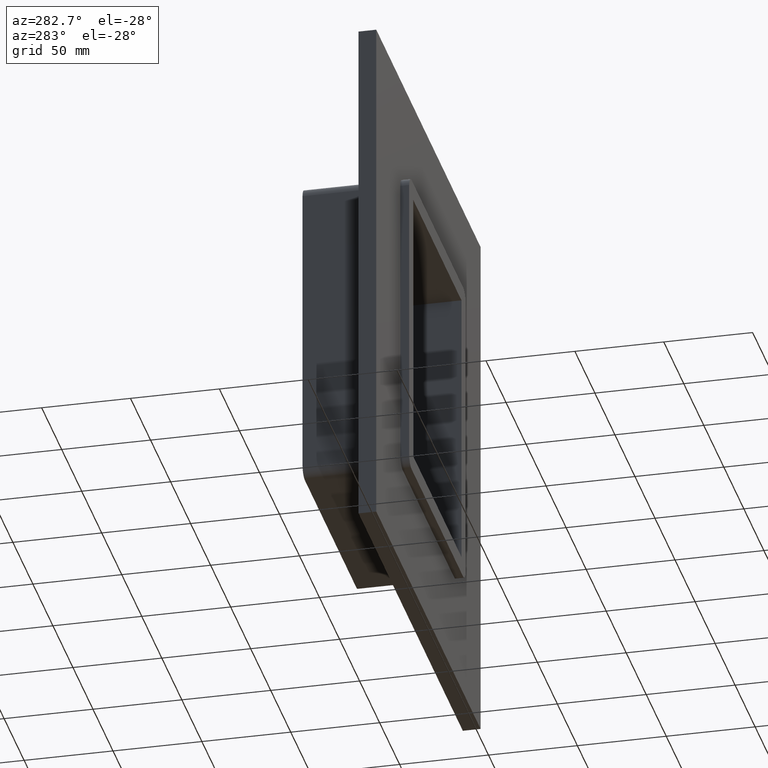
[diagram: clean part render]
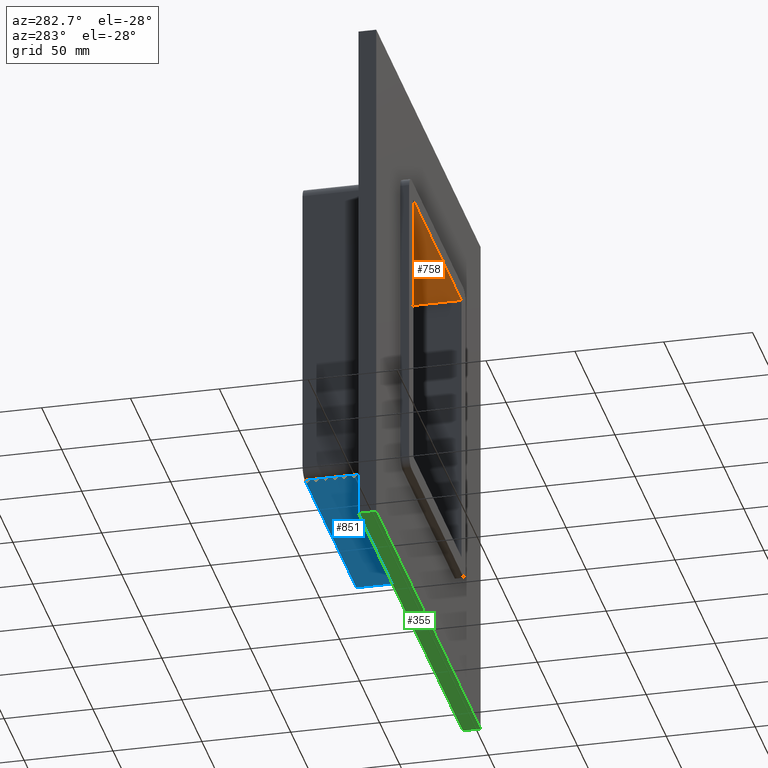
[diagram: same view with three faces highlighted in distinct colors, each labeled with its STEP entity id]
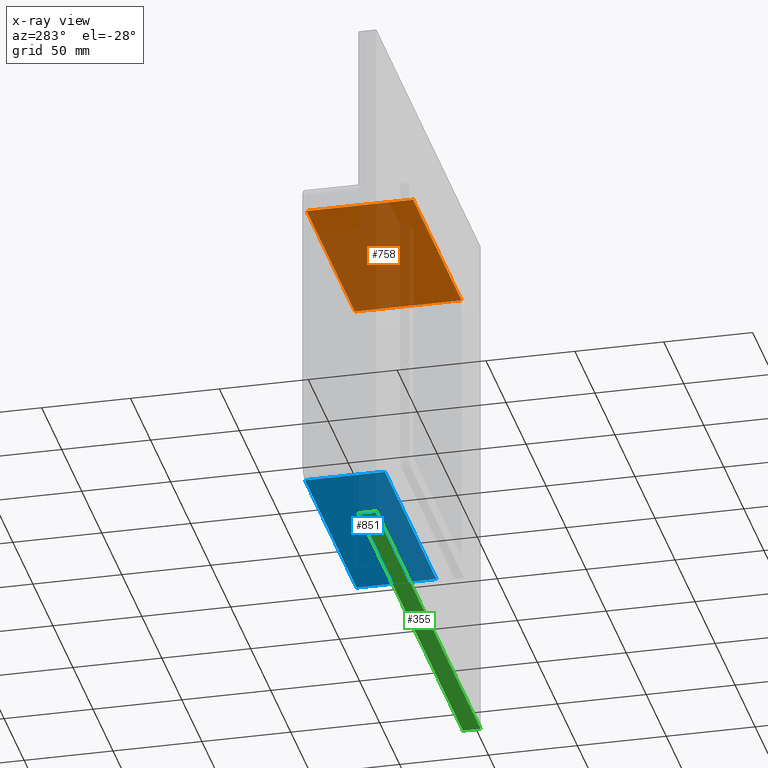
[diagram: x-ray of the same camera — body ghosted, the three highlighted faces saturated]
A machine part, auxiliary view with three faces highlighted in distinct colors.
The next image is the same camera in x-ray (body ghosted, the three faces saturated) — at least one of them is partly hidden behind the body in this view.
Their STEP definitions:

[orange] entity #758 — the highlighted planar face has unit normal (0, 0, 1).
#361=CARTESIAN_POINT('',(-60.25,-5.0,79.750000000000014));
#362=VERTEX_POINT('',#361);
#363=CARTESIAN_POINT('',(-60.25,55.0,79.750000000000014));
#364=VERTEX_POINT('',#363);
#365=CARTESIAN_POINT('',(-60.25,-5.0,79.750000000000014));
#366=DIRECTION('',(0.0,1.0,0.0));
#367=VECTOR('',#366,60.0);
#368=LINE('',#365,#367);
#369=EDGE_CURVE('',#362,#364,#368,.T.);
#702=CARTESIAN_POINT('',(60.25,-5.0,79.750000000000014));
#703=VERTEX_POINT('',#702);
#704=CARTESIAN_POINT('',(60.25,55.0,79.750000000000014));
#705=VERTEX_POINT('',#704);
#706=CARTESIAN_POINT('',(60.25,-5.0,79.750000000000014));
#707=DIRECTION('',(0.0,1.0,0.0));
#708=VECTOR('',#707,60.0);
#709=LINE('',#706,#708);
#710=EDGE_CURVE('',#703,#705,#709,.T.);
#737=CARTESIAN_POINT('',(-60.25,0.0,79.750000000000014));
#738=DIRECTION('',(0.0,0.0,1.0));
#739=DIRECTION('',(1.0,0.0,0.0));
#740=AXIS2_PLACEMENT_3D('',#737,#738,#739);
#741=PLANE('',#740);
#742=ORIENTED_EDGE('',*,*,#369,.T.);
#743=CARTESIAN_POINT('',(60.250000000000014,55.0,79.750000000000014));
#744=DIRECTION('',(-1.0,0.0,0.0));
#745=VECTOR('',#744,120.50000000000001);
#746=LINE('',#743,#745);
#747=EDGE_CURVE('',#705,#364,#746,.T.);
#748=ORIENTED_EDGE('',*,*,#747,.F.);
#749=ORIENTED_EDGE('',*,*,#710,.F.);
#750=CARTESIAN_POINT('',(-60.25,-5.0,79.750000000000014));
#751=DIRECTION('',(1.0,0.0,0.0));
#752=VECTOR('',#751,120.50000000000001);
#753=LINE('',#750,#752);
#754=EDGE_CURVE('',#362,#703,#753,.T.);
#755=ORIENTED_EDGE('',*,*,#754,.F.);
#756=EDGE_LOOP('',(#742,#748,#749,#755));
#757=FACE_OUTER_BOUND('',#756,.T.);
#758=ADVANCED_FACE('',(#757),#741,.F.);

[blue] entity #851 — the highlighted planar face has unit normal (0, 0, -1).
#143=CARTESIAN_POINT('',(-64.25,10.0,-89.750000000000014));
#144=VERTEX_POINT('',#143);
#152=CARTESIAN_POINT('',(64.25,10.0,-89.750000000000014));
#153=VERTEX_POINT('',#152);
#154=CARTESIAN_POINT('',(64.25,10.0,-89.750000000000014));
#155=DIRECTION('',(-1.0,0.0,0.0));
#156=VECTOR('',#155,128.5);
#157=LINE('',#154,#156);
#158=EDGE_CURVE('',#153,#144,#157,.T.);
#442=CARTESIAN_POINT('',(-64.25,55.0,-89.750000000000014));
#443=VERTEX_POINT('',#442);
#451=CARTESIAN_POINT('',(-64.25,10.0,-89.750000000000014));
#452=DIRECTION('',(0.0,1.0,0.0));
#453=VECTOR('',#452,45.0);
#454=LINE('',#451,#453);
#455=EDGE_CURVE('',#144,#443,#454,.T.);
#828=CARTESIAN_POINT('',(64.25,0.0,-89.750000000000014));
#829=DIRECTION('',(0.0,0.0,-1.0));
#830=DIRECTION('',(-1.0,0.0,0.0));
#831=AXIS2_PLACEMENT_3D('',#828,#829,#830);
#832=PLANE('',#831);
#833=ORIENTED_EDGE('',*,*,#158,.T.);
#834=ORIENTED_EDGE('',*,*,#455,.T.);
#835=CARTESIAN_POINT('',(64.25,55.0,-89.750000000000014));
#836=VERTEX_POINT('',#835);
#837=CARTESIAN_POINT('',(64.25,55.0,-89.750000000000014));
#838=DIRECTION('',(-1.0,0.0,0.0));
#839=VECTOR('',#838,128.5);
#840=LINE('',#837,#839);
#841=EDGE_CURVE('',#836,#443,#840,.T.);
#842=ORIENTED_EDGE('',*,*,#841,.F.);
#843=CARTESIAN_POINT('',(64.25,10.0,-89.750000000000014));
#844=DIRECTION('',(0.0,1.0,0.0));
#845=VECTOR('',#844,45.0);
#846=LINE('',#843,#845);
#847=EDGE_CURVE('',#153,#836,#846,.T.);
#848=ORIENTED_EDGE('',*,*,#847,.F.);
#849=EDGE_LOOP('',(#833,#834,#842,#848));
#850=FACE_OUTER_BOUND('',#849,.T.);
#851=ADVANCED_FACE('',(#850),#832,.T.);

[green] entity #355 — the highlighted planar face has unit normal (0, 0, -1).
#73=CARTESIAN_POINT('',(130.25,10.0,-149.75000000000003));
#74=VERTEX_POINT('',#73);
#75=CARTESIAN_POINT('',(-130.24999999999997,10.0,-149.75000000000003));
#76=VERTEX_POINT('',#75);
#77=CARTESIAN_POINT('',(130.25,10.0,-149.75000000000003));
#78=DIRECTION('',(-1.0,0.0,0.0));
#79=VECTOR('',#78,260.5);
#80=LINE('',#77,#79);
#81=EDGE_CURVE('',#74,#76,#80,.T.);
#183=CARTESIAN_POINT('',(130.25,0.0,-149.75000000000003));
#184=VERTEX_POINT('',#183);
#185=CARTESIAN_POINT('',(-130.25,0.0,-149.75000000000003));
#186=VERTEX_POINT('',#185);
#187=CARTESIAN_POINT('',(130.25,0.0,-149.75000000000003));
#188=DIRECTION('',(-1.0,0.0,0.0));
#189=VECTOR('',#188,260.5);
#190=LINE('',#187,#189);
#191=EDGE_CURVE('',#184,#186,#190,.T.);
#294=CARTESIAN_POINT('',(130.25,0.0,-149.75000000000003));
#295=DIRECTION('',(0.0,1.0,0.0));
#296=VECTOR('',#295,10.0);
#297=LINE('',#294,#296);
#298=EDGE_CURVE('',#184,#74,#297,.T.);
#335=CARTESIAN_POINT('',(-130.25,0.0,-149.75000000000003));
#336=DIRECTION('',(0.0,1.0,0.0));
#337=VECTOR('',#336,10.0);
#338=LINE('',#335,#337);
#339=EDGE_CURVE('',#186,#76,#338,.T.);
#344=CARTESIAN_POINT('',(130.25,0.0,-149.75000000000003));
#345=DIRECTION('',(0.0,0.0,-1.0));
#346=DIRECTION('',(-1.0,0.0,0.0));
#347=AXIS2_PLACEMENT_3D('',#344,#345,#346);
#348=PLANE('',#347);
#349=ORIENTED_EDGE('',*,*,#191,.T.);
#350=ORIENTED_EDGE('',*,*,#339,.T.);
#351=ORIENTED_EDGE('',*,*,#81,.F.);
#352=ORIENTED_EDGE('',*,*,#298,.F.);
#353=EDGE_LOOP('',(#349,#350,#351,#352));
#354=FACE_OUTER_BOUND('',#353,.T.);
#355=ADVANCED_FACE('',(#354),#348,.T.);